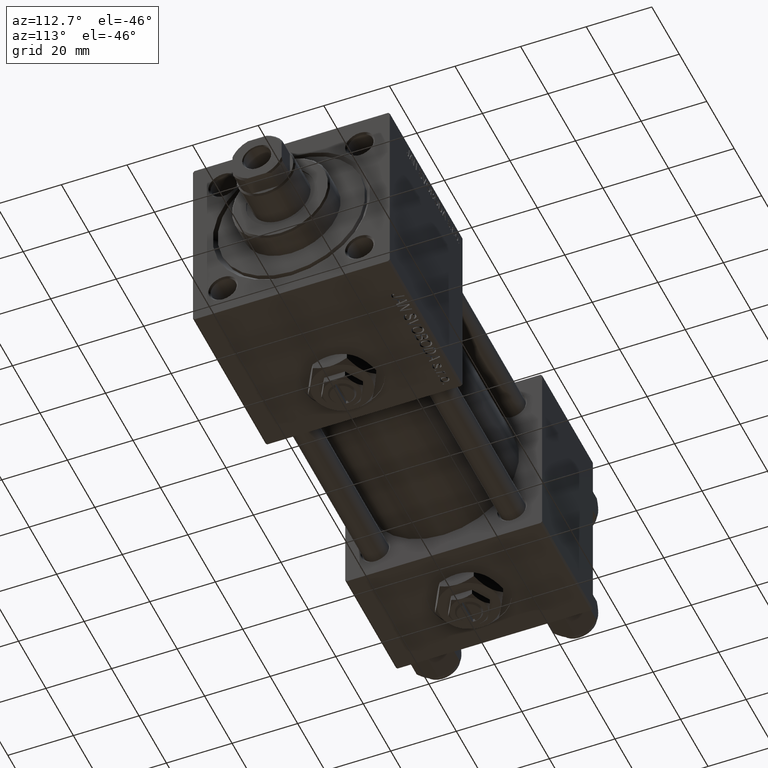
[diagram: clean part render]
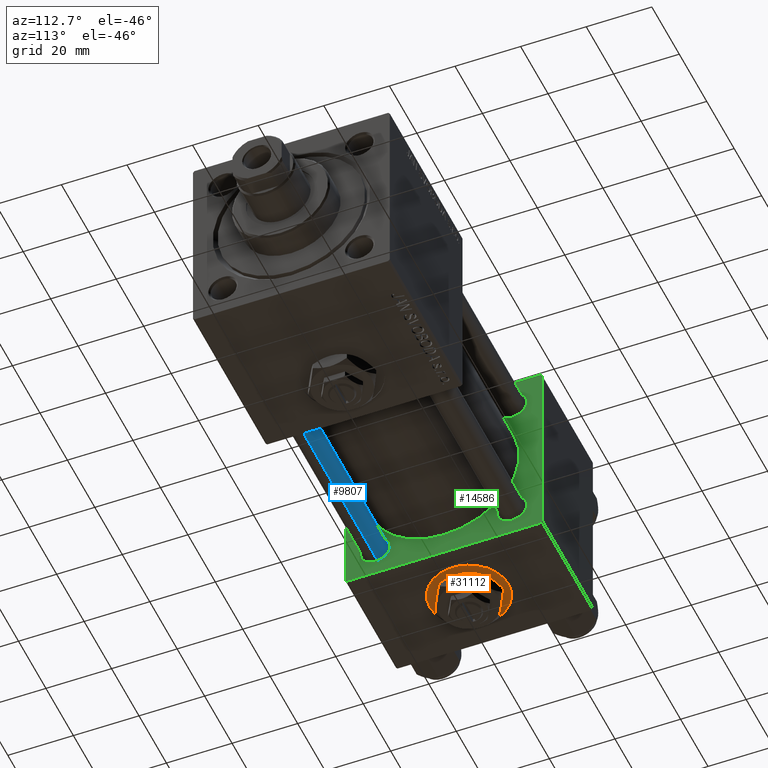
[diagram: same view with three faces highlighted in distinct colors, each labeled with its STEP entity id]
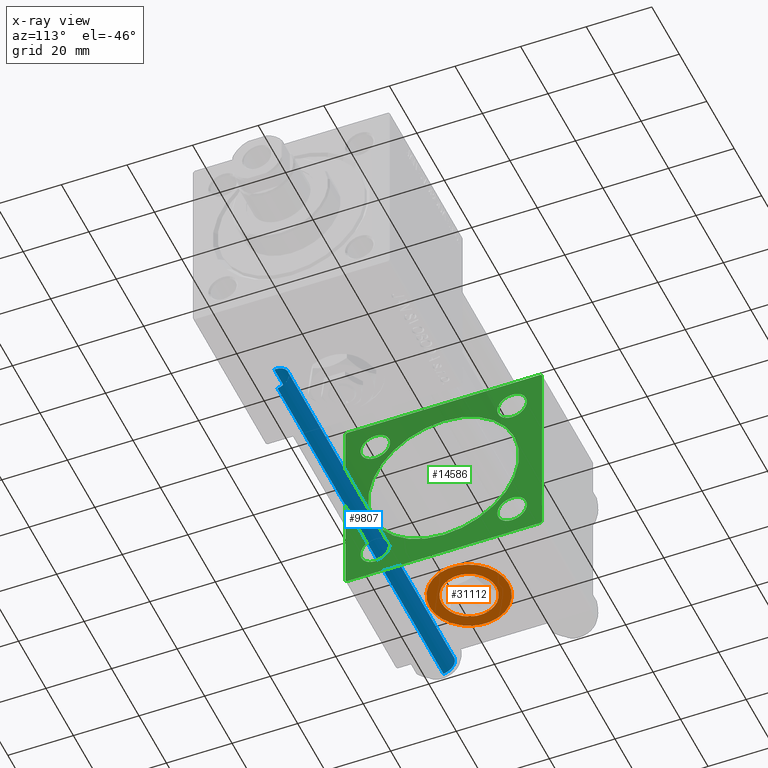
[diagram: x-ray of the same camera — body ghosted, the three highlighted faces saturated]
A machine part, auxiliary view with three faces highlighted in distinct colors.
The next image is the same camera in x-ray (body ghosted, the three faces saturated) — at least one of them is partly hidden behind the body in this view.
Their STEP definitions:

[orange] entity #31112 — the highlighted planar face has unit normal (0, -0, -1).
#890 = CIRCLE ( 'NONE', #22843, 12.00000000000000178 ) ;
#1666 = FACE_OUTER_BOUND ( 'NONE', #14208, .T. ) ;
#1719 = VERTEX_POINT ( 'NONE', #46187 ) ;
#3372 = ORIENTED_EDGE ( 'NONE', *, *, #16197, .T. ) ;
#3766 = ORIENTED_EDGE ( 'NONE', *, *, #17704, .F. ) ;
#10227 = CARTESIAN_POINT ( 'NONE',  ( 18.50000000000000355, 2.299712579496311108E-15, -29.80000000000000426 ) ) ;
#13034 = AXIS2_PLACEMENT_3D ( 'NONE', #41046, #23890, #24406 ) ;
#14208 = EDGE_LOOP ( 'NONE', ( #3372, #31946 ) ) ;
#16197 = EDGE_CURVE ( 'NONE', #37525, #1719, #890, .T. ) ;
#17453 = VERTEX_POINT ( 'NONE', #37597 ) ;
#17704 = EDGE_CURVE ( 'NONE', #29963, #17453, #49069, .T. ) ;
#18102 = CARTESIAN_POINT ( 'NONE',  ( 18.50000000000000355, 8.330000000000001847, -29.80000000000000426 ) ) ;
#18715 = AXIS2_PLACEMENT_3D ( 'NONE', #33616, #35442, #35968 ) ;
#22843 = AXIS2_PLACEMENT_3D ( 'NONE', #10227, #42969, #26342 ) ;
#23512 = ORIENTED_EDGE ( 'NONE', *, *, #47511, .F. ) ;
#23890 = DIRECTION ( 'NONE',  ( 0.000000000000000000, -1.734723475976806848E-16, -1.000000000000000000 ) ) ;
#24406 = DIRECTION ( 'NONE',  ( 0.000000000000000000, 1.000000000000000000, 0.000000000000000000 ) ) ;
#25725 = FACE_BOUND ( 'NONE', #33166, .T. ) ;
#26342 = DIRECTION ( 'NONE',  ( 0.000000000000000000, 1.000000000000000000, -2.891205793294677833E-16 ) ) ;
#28644 = DIRECTION ( 'NONE',  ( 0.000000000000000000, -1.734723475976806848E-16, -1.000000000000000000 ) ) ;
#29958 = CARTESIAN_POINT ( 'NONE',  ( 18.50000000000000355, 2.299712579496311108E-15, -29.80000000000000426 ) ) ;
#29963 = VERTEX_POINT ( 'NONE', #18102 ) ;
#31112 = ADVANCED_FACE ( 'NONE', ( #25725, #1666 ), #41844, .T. ) ;
#31946 = ORIENTED_EDGE ( 'NONE', *, *, #42274, .T. ) ;
#33166 = EDGE_LOOP ( 'NONE', ( #3766, #23512 ) ) ;
#33616 = CARTESIAN_POINT ( 'NONE',  ( 18.50000000000000355, 2.299712579496311108E-15, -29.80000000000000426 ) ) ;
#34502 = AXIS2_PLACEMENT_3D ( 'NONE', #29958, #45288, #42100 ) ;
#35442 = DIRECTION ( 'NONE',  ( 0.000000000000000000, -1.734723475976806848E-16, -1.000000000000000000 ) ) ;
#35968 = DIRECTION ( 'NONE',  ( 0.000000000000000000, 1.000000000000000000, -2.891205793294677833E-16 ) ) ;
#36423 = AXIS2_PLACEMENT_3D ( 'NONE', #44488, #28644, #37349 ) ;
#37349 = DIRECTION ( 'NONE',  ( 0.000000000000000000, 1.000000000000000000, 0.000000000000000000 ) ) ;
#37525 = VERTEX_POINT ( 'NONE', #47452 ) ;
#37597 = CARTESIAN_POINT ( 'NONE',  ( 18.50000000000000355, -8.329999999999998295, -29.80000000000000426 ) ) ;
#41046 = CARTESIAN_POINT ( 'NONE',  ( 18.50000000000000355, 2.299712579496311503E-15, -29.80000000000000426 ) ) ;
#41844 = PLANE ( 'NONE',  #34502 ) ;
#42100 = DIRECTION ( 'NONE',  ( 0.000000000000000000, 1.000000000000000000, -1.734723475976806848E-16 ) ) ;
#42274 = EDGE_CURVE ( 'NONE', #1719, #37525, #49101, .T. ) ;
#42969 = DIRECTION ( 'NONE',  ( 0.000000000000000000, -1.734723475976806848E-16, -1.000000000000000000 ) ) ;
#44217 = CIRCLE ( 'NONE', #13034, 8.330000000000000071 ) ;
#44488 = CARTESIAN_POINT ( 'NONE',  ( 18.50000000000000355, 2.299712579496311503E-15, -29.80000000000000426 ) ) ;
#45288 = DIRECTION ( 'NONE',  ( 0.000000000000000000, -1.734723475976806848E-16, -1.000000000000000000 ) ) ;
#46187 = CARTESIAN_POINT ( 'NONE',  ( 18.50000000000000355, -12.00000000000000000, -29.80000000000000071 ) ) ;
#47452 = CARTESIAN_POINT ( 'NONE',  ( 18.50000000000000355, 12.00000000000000355, -29.80000000000000782 ) ) ;
#47511 = EDGE_CURVE ( 'NONE', #17453, #29963, #44217, .T. ) ;
#49069 = CIRCLE ( 'NONE', #36423, 8.330000000000000071 ) ;
#49101 = CIRCLE ( 'NONE', #18715, 12.00000000000000178 ) ;

[blue] entity #9807 — the highlighted cylindrical surface (edge-blend (fillet) strip) has radius 4 mm, axis along (-1, -0, -0).
#833 = ORIENTED_EDGE ( 'NONE', *, *, #39946, .T. ) ;
#1111 = VECTOR ( 'NONE', #20841, 1000.000000000000000 ) ;
#8215 = CARTESIAN_POINT ( 'NONE',  ( -4.000000000000000000, 0.000000000000000000, 0.5000000000000559552 ) ) ;
#9277 = ORIENTED_EDGE ( 'NONE', *, *, #23814, .T. ) ;
#9807 = ADVANCED_FACE ( 'NONE', ( #38359 ), #18007, .T. ) ;
#11028 = ORIENTED_EDGE ( 'NONE', *, *, #40243, .F. ) ;
#13136 = DIRECTION ( 'NONE',  ( 0.000000000000000000, 0.000000000000000000, -1.000000000000000000 ) ) ;
#14177 = VERTEX_POINT ( 'NONE', #50932 ) ;
#15078 = DIRECTION ( 'NONE',  ( -0.000000000000000000, -0.000000000000000000, -1.000000000000000000 ) ) ;
#15213 = CARTESIAN_POINT ( 'NONE',  ( -4.000000000000000000, 0.000000000000000000, 121.5000000000000426 ) ) ;
#18007 = CYLINDRICAL_SURFACE ( 'NONE', #46236, 4.000000000000000000 ) ;
#18646 = CIRCLE ( 'NONE', #25397, 4.000000000000000000 ) ;
#20841 = DIRECTION ( 'NONE',  ( -0.000000000000000000, -0.000000000000000000, -1.000000000000000000 ) ) ;
#21704 = CARTESIAN_POINT ( 'NONE',  ( 0.000000000000000000, 0.000000000000000000, 0.5000000000000559552 ) ) ;
#22855 = EDGE_CURVE ( 'NONE', #25615, #42511, #25063, .T. ) ;
#22898 = VERTEX_POINT ( 'NONE', #41186 ) ;
#23011 = CARTESIAN_POINT ( 'NONE',  ( 4.000000000000000000, 4.898587196589411843E-16, 122.0000000000000000 ) ) ;
#23278 = LINE ( 'NONE', #23011, #44783 ) ;
#23814 = EDGE_CURVE ( 'NONE', #42511, #22898, #32263, .T. ) ;
#25063 = LINE ( 'NONE', #29563, #1111 ) ;
#25397 = AXIS2_PLACEMENT_3D ( 'NONE', #49345, #13136, #29259 ) ;
#25615 = VERTEX_POINT ( 'NONE', #15213 ) ;
#26472 = DIRECTION ( 'NONE',  ( -0.000000000000000000, -0.000000000000000000, -1.000000000000000000 ) ) ;
#29259 = DIRECTION ( 'NONE',  ( 1.000000000000000000, 0.000000000000000000, 0.000000000000000000 ) ) ;
#29563 = CARTESIAN_POINT ( 'NONE',  ( -4.000000000000000000, 0.000000000000000000, 122.0000000000000000 ) ) ;
#29919 = CARTESIAN_POINT ( 'NONE',  ( 0.000000000000000000, 0.000000000000000000, 122.0000000000000000 ) ) ;
#32263 = CIRCLE ( 'NONE', #39019, 4.000000000000000000 ) ;
#34122 = DIRECTION ( 'NONE',  ( -0.000000000000000000, -0.000000000000000000, 1.000000000000000000 ) ) ;
#38359 = FACE_OUTER_BOUND ( 'NONE', #45625, .T. ) ;
#39019 = AXIS2_PLACEMENT_3D ( 'NONE', #21704, #34122, #50250 ) ;
#39946 = EDGE_CURVE ( 'NONE', #14177, #25615, #18646, .T. ) ;
#40243 = EDGE_CURVE ( 'NONE', #14177, #22898, #23278, .T. ) ;
#40682 = ORIENTED_EDGE ( 'NONE', *, *, #22855, .T. ) ;
#41186 = CARTESIAN_POINT ( 'NONE',  ( 4.000000000000000000, 4.898587196589411843E-16, 0.5000000000000559552 ) ) ;
#42511 = VERTEX_POINT ( 'NONE', #8215 ) ;
#44783 = VECTOR ( 'NONE', #15078, 1000.000000000000000 ) ;
#45625 = EDGE_LOOP ( 'NONE', ( #11028, #833, #40682, #9277 ) ) ;
#46236 = AXIS2_PLACEMENT_3D ( 'NONE', #29919, #26472, #46817 ) ;
#46817 = DIRECTION ( 'NONE',  ( -1.000000000000000000, 0.000000000000000000, 0.000000000000000000 ) ) ;
#49345 = CARTESIAN_POINT ( 'NONE',  ( 0.000000000000000000, 0.000000000000000000, 121.5000000000000426 ) ) ;
#50250 = DIRECTION ( 'NONE',  ( 1.000000000000000000, 0.000000000000000000, 0.000000000000000000 ) ) ;
#50932 = CARTESIAN_POINT ( 'NONE',  ( 4.000000000000000000, 4.898587196589411843E-16, 121.5000000000000426 ) ) ;

[green] entity #14586 — the highlighted planar face has unit normal (-1, 0, 0).
#945 = VERTEX_POINT ( 'NONE', #33502 ) ;
#1203 = DIRECTION ( 'NONE',  ( 0.000000000000000000, 0.000000000000000000, 1.000000000000000000 ) ) ;
#1261 = EDGE_CURVE ( 'NONE', #24840, #17290, #42558, .T. ) ;
#1423 = CIRCLE ( 'NONE', #22550, 4.499999999999990230 ) ;
#1454 = CARTESIAN_POINT ( 'NONE',  ( 37.00000000000000000, -29.50000000000001066, -30.00000000000000711 ) ) ;
#1713 = LINE ( 'NONE', #1454, #6240 ) ;
#1874 = ORIENTED_EDGE ( 'NONE', *, *, #38124, .T. ) ;
#1931 = VECTOR ( 'NONE', #33778, 1000.000000000000000 ) ;
#2217 = AXIS2_PLACEMENT_3D ( 'NONE', #45342, #9142, #5949 ) ;
#2287 = VERTEX_POINT ( 'NONE', #21234 ) ;
#2471 = VECTOR ( 'NONE', #27309, 1000.000000000000000 ) ;
#2954 = DIRECTION ( 'NONE',  ( -0.000000000000000000, 0.000000000000000000, 1.000000000000000000 ) ) ;
#3706 = EDGE_CURVE ( 'NONE', #29884, #17284, #1423, .T. ) ;
#3968 = DIRECTION ( 'NONE',  ( -0.000000000000000000, -0.7071067811865474617, -0.7071067811865474617 ) ) ;
#4033 = EDGE_CURVE ( 'NONE', #19430, #48075, #7948, .T. ) ;
#4326 = EDGE_CURVE ( 'NONE', #16696, #42333, #41154, .T. ) ;
#4763 = DIRECTION ( 'NONE',  ( 0.000000000000000000, 0.000000000000000000, 1.000000000000000000 ) ) ;
#4812 = DIRECTION ( 'NONE',  ( 0.000000000000000000, -0.7071067811865474617, 0.7071067811865474617 ) ) ;
#4947 = CARTESIAN_POINT ( 'NONE',  ( 37.00000000000000000, 29.99999999999999289, -30.00000000000000000 ) ) ;
#5031 = EDGE_LOOP ( 'NONE', ( #48535, #16328 ) ) ;
#5169 = DIRECTION ( 'NONE',  ( -1.000000000000000000, 0.000000000000000000, -0.000000000000000000 ) ) ;
#5949 = DIRECTION ( 'NONE',  ( 0.000000000000000000, 0.000000000000000000, 1.000000000000000000 ) ) ;
#6240 = VECTOR ( 'NONE', #34220, 1000.000000000000114 ) ;
#6427 = EDGE_CURVE ( 'NONE', #16441, #39189, #15870, .T. ) ;
#6539 = ORIENTED_EDGE ( 'NONE', *, *, #45791, .F. ) ;
#6905 = CARTESIAN_POINT ( 'NONE',  ( 37.00000000000000000, 0.000000000000000000, 0.000000000000000000 ) ) ;
#7153 = ORIENTED_EDGE ( 'NONE', *, *, #32481, .F. ) ;
#7216 = EDGE_LOOP ( 'NONE', ( #17410, #35316, #7153, #45495, #19226, #29372, #38702, #12677 ) ) ;
#7461 = CIRCLE ( 'NONE', #22657, 23.00000000000000000 ) ;
#7756 = CIRCLE ( 'NONE', #50800, 4.499999999999990230 ) ;
#7825 = CARTESIAN_POINT ( 'NONE',  ( 37.00000000000000000, -2.602085213965210642E-15, 0.000000000000000000 ) ) ;
#7948 = LINE ( 'NONE', #24066, #37714 ) ;
#8352 = CARTESIAN_POINT ( 'NONE',  ( 37.00000000000000000, -20.84999999999999076, 25.34999999999999432 ) ) ;
#8559 = EDGE_LOOP ( 'NONE', ( #47727, #48737 ) ) ;
#8657 = DIRECTION ( 'NONE',  ( 0.000000000000000000, -1.000000000000000000, -1.156482317317871725E-16 ) ) ;
#9142 = DIRECTION ( 'NONE',  ( -1.000000000000000000, 0.000000000000000000, -0.000000000000000000 ) ) ;
#9611 = VERTEX_POINT ( 'NONE', #33997 ) ;
#9676 = VECTOR ( 'NONE', #32188, 999.9999999999998863 ) ;
#10302 = CARTESIAN_POINT ( 'NONE',  ( 37.00000000000000000, 29.99999999999999289, -29.50000000000000000 ) ) ;
#10388 = CARTESIAN_POINT ( 'NONE',  ( 37.00000000000000000, 29.99999999999999289, 30.00000000000000000 ) ) ;
#10563 = EDGE_CURVE ( 'NONE', #31885, #49975, #7461, .T. ) ;
#10946 = CARTESIAN_POINT ( 'NONE',  ( 37.00000000000000000, -20.84999999999999076, -25.34999999999999432 ) ) ;
#11530 = DIRECTION ( 'NONE',  ( 1.000000000000000000, -0.000000000000000000, 0.000000000000000000 ) ) ;
#11706 = CARTESIAN_POINT ( 'NONE',  ( 37.00000000000000000, 29.99999999999999289, 30.00000000000000000 ) ) ;
#12648 = DIRECTION ( 'NONE',  ( -1.000000000000000000, 0.000000000000000000, -0.000000000000000000 ) ) ;
#12663 = CIRCLE ( 'NONE', #42192, 4.499999999999990230 ) ;
#12677 = ORIENTED_EDGE ( 'NONE', *, *, #47228, .T. ) ;
#13523 = AXIS2_PLACEMENT_3D ( 'NONE', #6905, #47347, #2954 ) ;
#13841 = VERTEX_POINT ( 'NONE', #10302 ) ;
#14026 = EDGE_LOOP ( 'NONE', ( #1874, #35570 ) ) ;
#14586 = ADVANCED_FACE ( 'NONE', ( #34670, #15362, #46832, #50798, #43379, #22251 ), #43112, .F. ) ;
#15136 = CARTESIAN_POINT ( 'NONE',  ( 37.00000000000000000, -29.49999999999998579, 29.99999999999999289 ) ) ;
#15362 = FACE_BOUND ( 'NONE', #15653, .T. ) ;
#15403 = AXIS2_PLACEMENT_3D ( 'NONE', #25840, #38519, #21361 ) ;
#15653 = EDGE_LOOP ( 'NONE', ( #36321, #43847 ) ) ;
#15870 = CIRCLE ( 'NONE', #45414, 4.499999999999990230 ) ;
#15982 = AXIS2_PLACEMENT_3D ( 'NONE', #41393, #32940, #32677 ) ;
#16073 = CARTESIAN_POINT ( 'NONE',  ( 37.00000000000000000, 29.99999999999999289, -29.50000000000000000 ) ) ;
#16085 = DIRECTION ( 'NONE',  ( 0.000000000000000000, 0.000000000000000000, 1.000000000000000000 ) ) ;
#16328 = ORIENTED_EDGE ( 'NONE', *, *, #1261, .T. ) ;
#16441 = VERTEX_POINT ( 'NONE', #26736 ) ;
#16696 = VERTEX_POINT ( 'NONE', #27197 ) ;
#16704 = LINE ( 'NONE', #36267, #32011 ) ;
#17135 = ORIENTED_EDGE ( 'NONE', *, *, #10563, .F. ) ;
#17284 = VERTEX_POINT ( 'NONE', #46109 ) ;
#17290 = VERTEX_POINT ( 'NONE', #10946 ) ;
#17410 = ORIENTED_EDGE ( 'NONE', *, *, #4326, .F. ) ;
#17654 = CARTESIAN_POINT ( 'NONE',  ( 37.00000000000000000, -30.00000000000000000, 29.99999999999999289 ) ) ;
#19226 = ORIENTED_EDGE ( 'NONE', *, *, #27308, .T. ) ;
#19430 = VERTEX_POINT ( 'NONE', #15136 ) ;
#19828 = DIRECTION ( 'NONE',  ( -1.000000000000000000, 0.000000000000000000, -0.000000000000000000 ) ) ;
#21234 = CARTESIAN_POINT ( 'NONE',  ( 37.00000000000000000, 20.84999999999999787, -25.34999999999999076 ) ) ;
#21361 = DIRECTION ( 'NONE',  ( 0.000000000000000000, 0.000000000000000000, 1.000000000000000000 ) ) ;
#22251 = FACE_OUTER_BOUND ( 'NONE', #7216, .T. ) ;
#22550 = AXIS2_PLACEMENT_3D ( 'NONE', #32719, #12648, #16085 ) ;
#22657 = AXIS2_PLACEMENT_3D ( 'NONE', #7825, #11530, #43501 ) ;
#23472 = CARTESIAN_POINT ( 'NONE',  ( 37.00000000000000000, 20.84999999999999787, -20.85000000000000142 ) ) ;
#23898 = AXIS2_PLACEMENT_3D ( 'NONE', #40966, #44924, #4763 ) ;
#24066 = CARTESIAN_POINT ( 'NONE',  ( 37.00000000000000000, -30.00000000000000000, 29.49999999999999289 ) ) ;
#24840 = VERTEX_POINT ( 'NONE', #45826 ) ;
#25210 = CIRCLE ( 'NONE', #15982, 4.499999999999990230 ) ;
#25840 = CARTESIAN_POINT ( 'NONE',  ( 37.00000000000000000, 20.84999999999999787, 20.85000000000000142 ) ) ;
#25907 = CARTESIAN_POINT ( 'NONE',  ( 37.00000000000000000, -30.00000000000000000, -29.50000000000001776 ) ) ;
#26463 = VECTOR ( 'NONE', #29428, 1000.000000000000000 ) ;
#26736 = CARTESIAN_POINT ( 'NONE',  ( 37.00000000000000000, 20.84999999999999787, 16.35000000000001208 ) ) ;
#27197 = CARTESIAN_POINT ( 'NONE',  ( 37.00000000000000000, 29.49999999999997868, -30.00000000000000000 ) ) ;
#27308 = EDGE_CURVE ( 'NONE', #39565, #19430, #38123, .T. ) ;
#27309 = DIRECTION ( 'NONE',  ( 0.000000000000000000, 0.000000000000000000, -1.000000000000000000 ) ) ;
#29160 = CARTESIAN_POINT ( 'NONE',  ( 37.00000000000000000, -30.00000000000000000, 29.49999999999999289 ) ) ;
#29372 = ORIENTED_EDGE ( 'NONE', *, *, #4033, .T. ) ;
#29428 = DIRECTION ( 'NONE',  ( 0.000000000000000000, -1.000000000000000000, -1.156482317317871725E-16 ) ) ;
#29808 = DIRECTION ( 'NONE',  ( 0.000000000000000000, 0.000000000000000000, 1.000000000000000000 ) ) ;
#29884 = VERTEX_POINT ( 'NONE', #8352 ) ;
#30048 = EDGE_CURVE ( 'NONE', #17290, #24840, #49493, .T. ) ;
#30219 = VERTEX_POINT ( 'NONE', #25907 ) ;
#31400 = DIRECTION ( 'NONE',  ( -1.000000000000000000, 0.000000000000000000, -0.000000000000000000 ) ) ;
#31557 = EDGE_CURVE ( 'NONE', #2287, #945, #25210, .T. ) ;
#31885 = VERTEX_POINT ( 'NONE', #34322 ) ;
#32011 = VECTOR ( 'NONE', #4812, 1000.000000000000114 ) ;
#32188 = DIRECTION ( 'NONE',  ( -0.000000000000000000, 0.7071067811865574537, 0.7071067811865376918 ) ) ;
#32481 = EDGE_CURVE ( 'NONE', #9611, #13841, #35484, .T. ) ;
#32605 = EDGE_CURVE ( 'NONE', #9611, #39565, #16704, .T. ) ;
#32677 = DIRECTION ( 'NONE',  ( 0.000000000000000000, 0.000000000000000000, 1.000000000000000000 ) ) ;
#32719 = CARTESIAN_POINT ( 'NONE',  ( 37.00000000000000000, -20.84999999999999076, 20.85000000000000497 ) ) ;
#32940 = DIRECTION ( 'NONE',  ( -1.000000000000000000, 0.000000000000000000, -0.000000000000000000 ) ) ;
#33017 = CARTESIAN_POINT ( 'NONE',  ( 37.00000000000000000, -20.84999999999999076, 20.85000000000000497 ) ) ;
#33502 = CARTESIAN_POINT ( 'NONE',  ( 37.00000000000000000, 20.84999999999999787, -16.35000000000001208 ) ) ;
#33778 = DIRECTION ( 'NONE',  ( 0.000000000000000000, 0.000000000000000000, -1.000000000000000000 ) ) ;
#33997 = CARTESIAN_POINT ( 'NONE',  ( 37.00000000000000000, 29.99999999999999289, 29.50000000000000000 ) ) ;
#34106 = AXIS2_PLACEMENT_3D ( 'NONE', #47093, #5169, #1203 ) ;
#34220 = DIRECTION ( 'NONE',  ( 0.000000000000000000, 0.7071067811865474617, -0.7071067811865474617 ) ) ;
#34322 = CARTESIAN_POINT ( 'NONE',  ( 37.00000000000000000, 2.146024240737012665E-16, -23.00000000000000000 ) ) ;
#34670 = FACE_BOUND ( 'NONE', #5031, .T. ) ;
#35316 = ORIENTED_EDGE ( 'NONE', *, *, #51717, .T. ) ;
#35484 = LINE ( 'NONE', #11706, #2471 ) ;
#35570 = ORIENTED_EDGE ( 'NONE', *, *, #3706, .T. ) ;
#36267 = CARTESIAN_POINT ( 'NONE',  ( 37.00000000000000000, 29.49999999999999289, 30.00000000000000000 ) ) ;
#36321 = ORIENTED_EDGE ( 'NONE', *, *, #31557, .T. ) ;
#36883 = VECTOR ( 'NONE', #8657, 1000.000000000000000 ) ;
#37319 = CIRCLE ( 'NONE', #15403, 4.499999999999990230 ) ;
#37714 = VECTOR ( 'NONE', #3968, 1000.000000000000114 ) ;
#37768 = CARTESIAN_POINT ( 'NONE',  ( 37.00000000000000000, 20.84999999999999787, 25.34999999999999076 ) ) ;
#38123 = LINE ( 'NONE', #10388, #26463 ) ;
#38124 = EDGE_CURVE ( 'NONE', #17284, #29884, #12663, .T. ) ;
#38268 = CIRCLE ( 'NONE', #23898, 23.00000000000000000 ) ;
#38519 = DIRECTION ( 'NONE',  ( -1.000000000000000000, 0.000000000000000000, -0.000000000000000000 ) ) ;
#38702 = ORIENTED_EDGE ( 'NONE', *, *, #44354, .T. ) ;
#38885 = CARTESIAN_POINT ( 'NONE',  ( 37.00000000000000000, -29.50000000000000000, -30.00000000000000711 ) ) ;
#39189 = VERTEX_POINT ( 'NONE', #37768 ) ;
#39565 = VERTEX_POINT ( 'NONE', #41094 ) ;
#40030 = EDGE_LOOP ( 'NONE', ( #6539, #17135 ) ) ;
#40966 = CARTESIAN_POINT ( 'NONE',  ( 37.00000000000000000, -2.602085213965210642E-15, 0.000000000000000000 ) ) ;
#41094 = CARTESIAN_POINT ( 'NONE',  ( 37.00000000000000000, 29.49999999999999289, 30.00000000000000000 ) ) ;
#41154 = LINE ( 'NONE', #4947, #36883 ) ;
#41393 = CARTESIAN_POINT ( 'NONE',  ( 37.00000000000000000, 20.84999999999999787, -20.85000000000000142 ) ) ;
#42192 = AXIS2_PLACEMENT_3D ( 'NONE', #33017, #19828, #44644 ) ;
#42333 = VERTEX_POINT ( 'NONE', #38885 ) ;
#42546 = EDGE_CURVE ( 'NONE', #945, #2287, #7756, .T. ) ;
#42558 = CIRCLE ( 'NONE', #34106, 4.499999999999990230 ) ;
#43005 = CARTESIAN_POINT ( 'NONE',  ( 37.00000000000000000, -2.602085213965210642E-15, 23.00000000000000000 ) ) ;
#43112 = PLANE ( 'NONE',  #13523 ) ;
#43379 = FACE_BOUND ( 'NONE', #40030, .T. ) ;
#43432 = EDGE_CURVE ( 'NONE', #39189, #16441, #37319, .T. ) ;
#43501 = DIRECTION ( 'NONE',  ( 0.000000000000000000, 0.000000000000000000, 1.000000000000000000 ) ) ;
#43847 = ORIENTED_EDGE ( 'NONE', *, *, #42546, .T. ) ;
#44067 = DIRECTION ( 'NONE',  ( 0.000000000000000000, 0.000000000000000000, 1.000000000000000000 ) ) ;
#44354 = EDGE_CURVE ( 'NONE', #48075, #30219, #46458, .T. ) ;
#44644 = DIRECTION ( 'NONE',  ( 0.000000000000000000, 0.000000000000000000, 1.000000000000000000 ) ) ;
#44924 = DIRECTION ( 'NONE',  ( 1.000000000000000000, -0.000000000000000000, 0.000000000000000000 ) ) ;
#45342 = CARTESIAN_POINT ( 'NONE',  ( 37.00000000000000000, -20.84999999999999076, -20.85000000000000497 ) ) ;
#45414 = AXIS2_PLACEMENT_3D ( 'NONE', #50416, #49893, #29808 ) ;
#45495 = ORIENTED_EDGE ( 'NONE', *, *, #32605, .T. ) ;
#45791 = EDGE_CURVE ( 'NONE', #49975, #31885, #38268, .T. ) ;
#45826 = CARTESIAN_POINT ( 'NONE',  ( 37.00000000000000000, -20.84999999999999076, -16.35000000000001208 ) ) ;
#46109 = CARTESIAN_POINT ( 'NONE',  ( 37.00000000000000000, -20.84999999999999076, 16.35000000000001208 ) ) ;
#46458 = LINE ( 'NONE', #17654, #1931 ) ;
#46832 = FACE_BOUND ( 'NONE', #14026, .T. ) ;
#47093 = CARTESIAN_POINT ( 'NONE',  ( 37.00000000000000000, -20.84999999999999076, -20.85000000000000497 ) ) ;
#47228 = EDGE_CURVE ( 'NONE', #30219, #42333, #1713, .T. ) ;
#47347 = DIRECTION ( 'NONE',  ( -1.000000000000000000, 0.000000000000000000, -0.000000000000000000 ) ) ;
#47727 = ORIENTED_EDGE ( 'NONE', *, *, #6427, .T. ) ;
#48075 = VERTEX_POINT ( 'NONE', #29160 ) ;
#48535 = ORIENTED_EDGE ( 'NONE', *, *, #30048, .T. ) ;
#48737 = ORIENTED_EDGE ( 'NONE', *, *, #43432, .T. ) ;
#49493 = CIRCLE ( 'NONE', #2217, 4.499999999999990230 ) ;
#49893 = DIRECTION ( 'NONE',  ( -1.000000000000000000, 0.000000000000000000, -0.000000000000000000 ) ) ;
#49975 = VERTEX_POINT ( 'NONE', #43005 ) ;
#50416 = CARTESIAN_POINT ( 'NONE',  ( 37.00000000000000000, 20.84999999999999787, 20.85000000000000142 ) ) ;
#50798 = FACE_BOUND ( 'NONE', #8559, .T. ) ;
#50800 = AXIS2_PLACEMENT_3D ( 'NONE', #23472, #31400, #44067 ) ;
#51717 = EDGE_CURVE ( 'NONE', #16696, #13841, #52284, .T. ) ;
#52284 = LINE ( 'NONE', #16073, #9676 ) ;